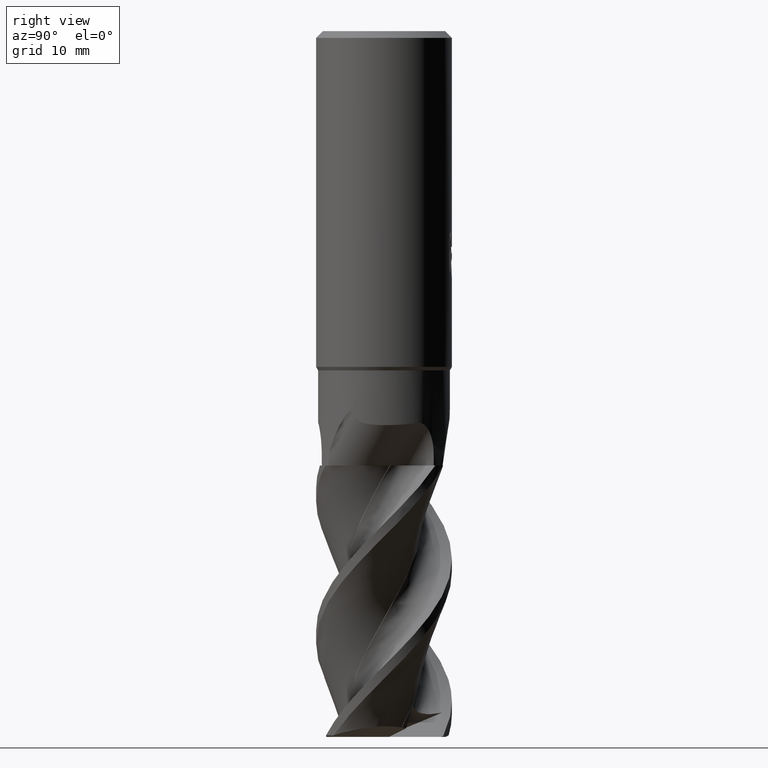
[diagram: clean part render]
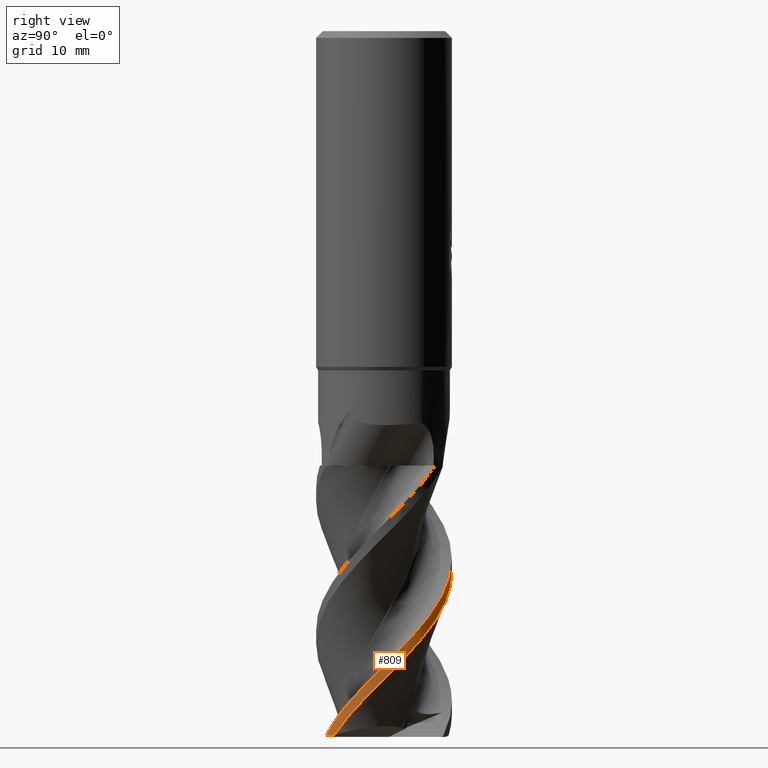
[diagram: same view with one face highlighted and labeled with its STEP entity id]
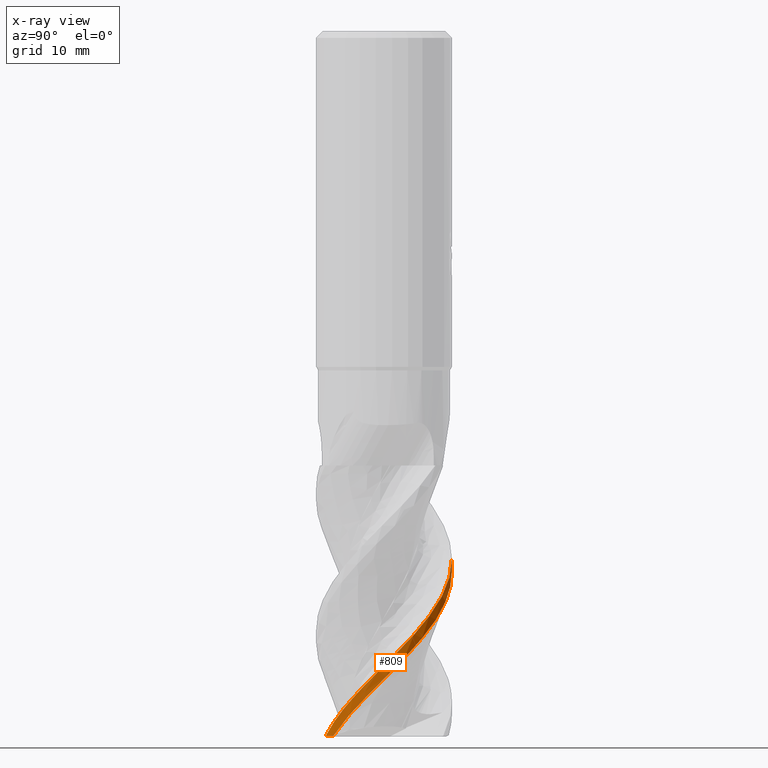
[diagram: x-ray of the same camera — body ghosted, the highlighted face saturated]
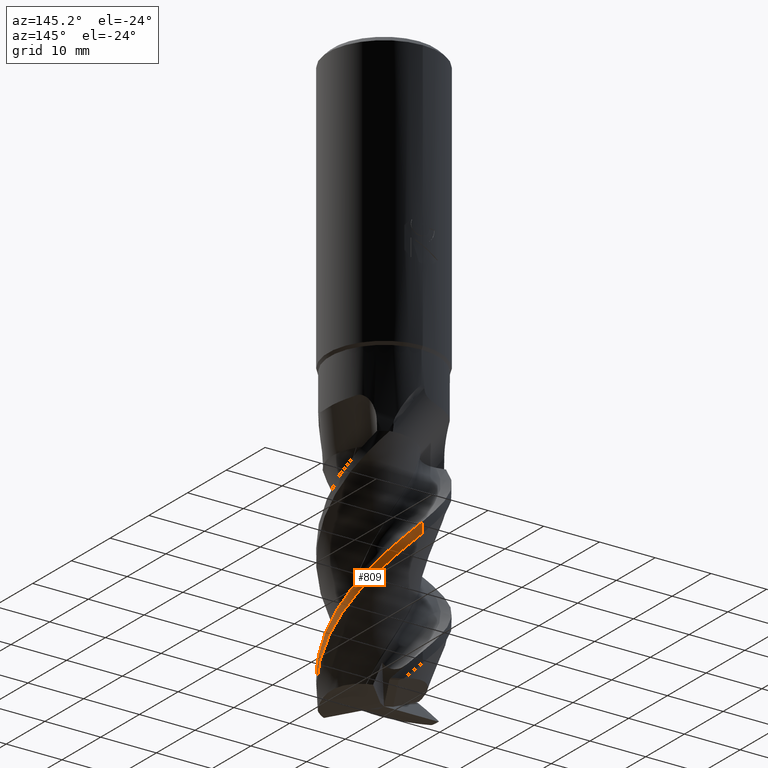
[diagram: same view with one face highlighted and labeled with its STEP entity id]
A machine part, right view. The second image highlights one B-rep face of the part: STEP entity #809.
The next image is the same camera in x-ray: the body ghosted, the highlighted face saturated — about 0% of this face is hidden behind the body in this view.
A second angle (auxiliary view) of the same face is appended — the face is thin or edge-on in the first view.
In plain terms, the highlighted conical surface has half-angle 0 deg.
Its self-contained STEP definition (entity closure, byte-faithful):
#453=VERTEX_POINT('',#1308);
#497=EDGE_CURVE('',#967,#1281,#1357,.T.);
#535=EDGE_CURVE('',#563,#453,#1399,.T.);
#563=VERTEX_POINT('',#1429);
#595=EDGE_CURVE('',#697,#563,#1464,.T.);
#697=VERTEX_POINT('',#1576);
#809=ADVANCED_FACE('',(#1700),#1701,.T.);
#967=VERTEX_POINT('',#1873);
#1003=EDGE_CURVE('',#697,#1281,#1910,.T.);
#1065=EDGE_CURVE('',#967,#453,#1978,.T.);
#1281=VERTEX_POINT('',#2214);
#1308=CARTESIAN_POINT('',(-1.44784733791504E-012,9.99993947624046,-79.7115437015263));
#1357=B_SPLINE_CURVE_WITH_KNOTS('',3,(#2415,#2416,#2417,#2418,#2419,#2420,#2421,#2422,#2423,#2424,#2425,#2426,#2427,#2428,#2429,#2430,#2431,#2432,#2433,#2434,#2435,#2436,#2437,#2438,#2439,#2440,#2441,#2442,#2443,#2444,#2445,#2446,#2447,#2448,#2449,#2450,#2451,#2452,#2453,#2454,#2455,#2456,#2457,#2458,#2459,#2460,#2461,#2462,#2463,#2464),.UNSPECIFIED.,.F.,.F.,(4,2,2,2,2,2,2,2,2,2,2,2,2,2,2,2,2,2,2,2,2,2,2,2,4),(0.0,1.83688179088632,5.68461323344617,6.58714347548121,8.38778271226653,10.2578606888634,12.9205590427445,14.8115356261273,18.507071820997,20.4283711112207,22.1734569225614,24.0094227868724,26.6497551941611,28.5041572687774,32.1316176911137,34.0160028990023,35.713504521051,37.512762740781,39.9990802534086,40.9011966697282,43.2801547555303,44.7519676223213,45.309646177908,46.6616631189539,47.8933672128346),.UNSPECIFIED.);
#1399=B_SPLINE_CURVE_WITH_KNOTS('',3,(#3065,#3066,#3067,#3068,#3069,#3070,#3071,#3072,#3073,#3074,#3075,#3076,#3077,#3078,#3079,#3080,#3081,#3082,#3083,#3084,#3085,#3086,#3087,#3088,#3089,#3090,#3091,#3092,#3093,#3094,#3095,#3096,#3097,#3098,#3099,#3100,#3101,#3102,#3103,#3104,#3105,#3106,#3107,#3108,#3109,#3110,#3111,#3112,#3113,#3114),.UNSPECIFIED.,.F.,.F.,(4,2,2,2,2,2,2,2,2,2,2,2,2,2,2,2,2,2,2,2,2,2,2,2,4),(0.0,6.65242903024763,7.56982083744152,9.39002536430975,13.1654422231845,14.8642968365969,18.4570516658264,19.775683816953,21.4348193968141,23.0557497425016,26.2948814002811,27.9268426898688,29.5151957014848,32.6893999396295,34.2886948796586,35.8451217292304,38.9553312426421,40.5223597795722,43.2828128134381,44.4623509281644,46.282936741235,48.9671843551809,50.3099974556583,50.9855578351501,51.6831145815169),.UNSPECIFIED.);
#1429=CARTESIAN_POINT('',(6.74215560576316,-7.38534596503248,-103.744987352058));
#1464=ELLIPSE('',#3335,10.5146239393431,10.0000016139019);
#1576=CARTESIAN_POINT('',(6.61336361160003,-7.50089472934826,-103.8));
#1700=FACE_OUTER_BOUND('',#5704,.T.);
#1701=CONICAL_SURFACE('',#5705,9.99995,2.51256281405921E-006);
#1873=CARTESIAN_POINT('',(2.41256380381924E-013,9.99993471722382,-77.8174550813689));
#1910=CIRCLE('',#7759,10.0);
#1978=LINE('',#7925,#7926);
#2214=CARTESIAN_POINT('',(5.16433493080699,-8.56327301459242,-103.8));
#2415=CARTESIAN_POINT('',(-9.8195921515313,1.89039942540851,-64.0));
#2416=CARTESIAN_POINT('',(-9.73680179583058,2.32045577612645,-64.4279032008373));
#2417=CARTESIAN_POINT('',(-9.62616861492684,2.74299842483845,-64.8612519519152));
#2418=CARTESIAN_POINT('',(-9.20147259722876,4.02005363807295,-66.2119453588237));
#2419=CARTESIAN_POINT('',(-8.79681885369268,4.84242542738371,-67.1408594066878));
#2420=CARTESIAN_POINT('',(-8.16514397107321,5.77707335028328,-68.2666298142365));
#2421=CARTESIAN_POINT('',(-8.03905614943915,5.95133236644778,-68.4799434901195));
#2422=CARTESIAN_POINT('',(-7.6434263994983,6.46232165426562,-69.1162582574725));
#2423=CARTESIAN_POINT('',(-7.35946761866097,6.78430140816072,-69.5345292134535));
#2424=CARTESIAN_POINT('',(-6.72891096634235,7.41115819908335,-70.4222580444062));
#2425=CARTESIAN_POINT('',(-6.38746227012636,7.70720699300879,-70.8778866002762));
#2426=CARTESIAN_POINT('',(-5.51751157652145,8.36455225197479,-71.9813376341191));
#2427=CARTESIAN_POINT('',(-4.96811168381596,8.70254915214437,-72.6321638236527));
#2428=CARTESIAN_POINT('',(-3.97444745947986,9.18766042162107,-73.7311607623126));
#2429=CARTESIAN_POINT('',(-3.55336347728873,9.3585454748018,-74.1709372673356));
#2430=CARTESIAN_POINT('',(-2.26623385999863,9.78088875441132,-75.514618129322));
#2431=CARTESIAN_POINT('',(-1.38483293467721,9.94334112034112,-76.4215144979877));
#2432=CARTESIAN_POINT('',(-0.0363006088850028,10.0105285744786,-77.7826774828773));
#2433=CARTESIAN_POINT('',(0.428775960197617,10.0016701883967,-78.247236054852));
#2434=CARTESIAN_POINT('',(1.3172894859256,9.9218848606799,-79.1252920679502));
#2435=CARTESIAN_POINT('',(1.7360398637281,9.85749995050665,-79.5382619480409));
#2436=CARTESIAN_POINT('',(2.59874100573697,9.66698184683463,-80.4203157849213));
#2437=CARTESIAN_POINT('',(3.03234541832829,9.53971035256465,-80.8759048502464));
#2438=CARTESIAN_POINT('',(4.0615590237687,9.16084746319968,-81.9857675872801));
#2439=CARTESIAN_POINT('',(4.64847958002076,8.87790319686943,-82.6431174089107));
#2440=CARTESIAN_POINT('',(5.59777984951222,8.29905298076998,-83.7477824578689));
#2441=CARTESIAN_POINT('',(5.96848125758253,8.03655919389752,-84.1873210526903));
#2442=CARTESIAN_POINT('',(7.01801302311412,7.17985215591402,-85.531584927985));
#2443=CARTESIAN_POINT('',(7.6301750734402,6.5245551675841,-86.4390864183552));
#2444=CARTESIAN_POINT('',(8.41368232905812,5.42424226569849,-87.8005745330614));
#2445=CARTESIAN_POINT('',(8.65678997469815,5.02769801326058,-88.2649574624631));
#2446=CARTESIAN_POINT('',(9.06669987096167,4.23928760390179,-89.1392161205382));
#2447=CARTESIAN_POINT('',(9.23701700052727,3.85479958518363,-89.5493891767617));
#2448=CARTESIAN_POINT('',(9.5410969636832,3.02853654652327,-90.4285406652441));
#2449=CARTESIAN_POINT('',(9.66794885189552,2.59471603395918,-90.8842700001985));
#2450=CARTESIAN_POINT('',(9.89893487455372,1.54824090147482,-91.9688175478429));
#2451=CARTESIAN_POINT('',(9.9766331728941,0.927206279076268,-92.6004351387727));
#2452=CARTESIAN_POINT('',(10.0022994472353,0.0727103344601177,-93.450955853776));
#2453=CARTESIAN_POINT('',(10.0013906285882,-0.155806862244051,-93.6766676732029));
#2454=CARTESIAN_POINT('',(9.96927950575422,-0.989334851649771,-94.4938435346194));
#2455=CARTESIAN_POINT('',(9.88345283613999,-1.81925026488744,-95.3172827968889));
#2456=CARTESIAN_POINT('',(9.4356740911284,-3.3686339840874,-96.9491844614293));
#2457=CARTESIAN_POINT('',(9.20938442838165,-3.94633219056517,-97.5752784988786));
#2458=CARTESIAN_POINT('',(8.8234325710378,-4.71192885272547,-98.4285172984764));
#2459=CARTESIAN_POINT('',(8.7095674962793,-4.91930502920194,-98.6622106111756));
#2460=CARTESIAN_POINT('',(8.29297727467946,-5.61762601590349,-99.4586691797531));
#2461=CARTESIAN_POINT('',(7.84686830302832,-6.27042652931896,-100.238006715456));
#2462=CARTESIAN_POINT('',(6.59274472440632,-7.56807428979895,-102.064097949723));
#2463=CARTESIAN_POINT('',(5.91269706929701,-8.11194858551921,-102.941449862242));
#2464=CARTESIAN_POINT('',(5.16433493080699,-8.56327301459242,-103.8));
#3065=CARTESIAN_POINT('',(6.70069878454363,-7.42298025046648,-103.8));
#3066=CARTESIAN_POINT('',(7.87523291662968,-6.36272706377205,-102.246444694812));
#3067=CARTESIAN_POINT('',(8.78122939826264,-5.04005581548762,-100.616631906771));
#3068=CARTESIAN_POINT('',(9.42309333576583,-3.35452542420069,-98.8528470911915));
#3069=CARTESIAN_POINT('',(9.49503231105218,-3.14567206700517,-98.6365226572576));
#3070=CARTESIAN_POINT('',(9.69273872719166,-2.5003774802769,-97.9681462705121));
#3071=CARTESIAN_POINT('',(9.79449059088749,-2.06518058369112,-97.5199298807626));
#3072=CARTESIAN_POINT('',(10.0166558618159,-0.71776142373854,-96.1404005826739));
#3073=CARTESIAN_POINT('',(10.0412635772841,0.214397438797438,-95.198551826366));
#3074=CARTESIAN_POINT('',(9.88640015333802,1.56058754689594,-93.8655324811264));
#3075=CARTESIAN_POINT('',(9.81252710581884,1.97388770687788,-93.4563811813412));
#3076=CARTESIAN_POINT('',(9.4947290722002,3.2658053952675,-92.1282797482288));
#3077=CARTESIAN_POINT('',(9.16147641647547,4.10820599737784,-91.2094885034884));
#3078=CARTESIAN_POINT('',(8.559188232589,5.18158289602682,-89.9737576016456));
#3079=CARTESIAN_POINT('',(8.38251683771596,5.46297263147413,-89.6429721193486));
#3080=CARTESIAN_POINT('',(7.95021396939508,6.08026826251375,-88.9010563501039));
#3081=CARTESIAN_POINT('',(7.68932378961563,6.40739330717991,-88.4939724048626));
#3082=CARTESIAN_POINT('',(7.12365351020546,7.03033859386279,-87.6547094084142));
#3083=CARTESIAN_POINT('',(6.82622228350467,7.31930686483281,-87.2370745854592));
#3084=CARTESIAN_POINT('',(5.88704796096753,8.12540508720116,-85.9848092828037));
#3085=CARTESIAN_POINT('',(5.1924169279643,8.5870883671453,-85.1435105594343));
#3086=CARTESIAN_POINT('',(4.06503929654036,9.14615766311109,-83.9043643458397));
#3087=CARTESIAN_POINT('',(3.67779866338934,9.30888198391779,-83.4957066711691));
#3088=CARTESIAN_POINT('',(2.88126238281649,9.58489166619146,-82.6548199951253));
#3089=CARTESIAN_POINT('',(2.48173089553118,9.69589130204028,-82.237184012907));
#3090=CARTESIAN_POINT('',(1.27108329513275,9.95307226358015,-80.9848963115355));
#3091=CARTESIAN_POINT('',(0.440107723090092,10.0252408914873,-80.1435994403185));
#3092=CARTESIAN_POINT('',(-0.817412511275718,9.9753882567732,-78.9044860540787));
#3093=CARTESIAN_POINT('',(-1.23530223877635,9.93253875688308,-78.4958550015093));
#3094=CARTESIAN_POINT('',(-2.06676097456496,9.79285956477666,-77.6549464116611));
#3095=CARTESIAN_POINT('',(-2.47062442938916,9.69871517567038,-77.2373116026611));
#3096=CARTESIAN_POINT('',(-3.65636937240386,9.34398156987025,-75.9850493355579));
#3097=CARTESIAN_POINT('',(-4.42016844619223,9.00893253577936,-75.1437492946965));
#3098=CARTESIAN_POINT('',(-5.49973107171853,8.36236803552893,-73.9045930056067));
#3099=CARTESIAN_POINT('',(-5.84588420031066,8.12444555383164,-73.4959391178302));
#3100=CARTESIAN_POINT('',(-6.77321625649006,7.3951532289451,-72.3191357709793));
#3101=CARTESIAN_POINT('',(-7.3084292274384,6.8661666465248,-71.5571990319618));
#3102=CARTESIAN_POINT('',(-7.97908841823686,6.03610293625383,-70.4797606622806));
#3103=CARTESIAN_POINT('',(-8.16852772302857,5.77727778068163,-70.1576119929425));
#3104=CARTESIAN_POINT('',(-8.6192443961027,5.09444819231339,-69.3426668234155));
#3105=CARTESIAN_POINT('',(-8.85834982171171,4.66614930607128,-68.8686222307968));
#3106=CARTESIAN_POINT('',(-9.37493716570216,3.55548390434748,-67.6544134211693));
#3107=CARTESIAN_POINT('',(-9.60768486310159,2.86561181045573,-66.9194656923198));
#3108=CARTESIAN_POINT('',(-9.84171092217013,1.80810669656245,-65.8234310821178));
#3109=CARTESIAN_POINT('',(-9.90080767510292,1.45051703467983,-65.4579322364689));
#3110=CARTESIAN_POINT('',(-9.96028482450916,0.907833202887552,-64.9115894358543));
#3111=CARTESIAN_POINT('',(-9.97526294143053,0.725200364049062,-64.7291120232753));
#3112=CARTESIAN_POINT('',(-9.9954916861099,0.352345378317829,-64.3594297163902));
#3113=CARTESIAN_POINT('',(-10.0001517105948,0.166830188109848,-64.1769858654546));
#3114=CARTESIAN_POINT('',(-9.99988957941518,-0.0144363951061299,-64.0));
#3335=AXIS2_PLACEMENT_3D('',#10256,#10257,#10258);
#5704=EDGE_LOOP('',(#10537,#10538,#10539,#10540,#10541));
#5705=AXIS2_PLACEMENT_3D('',#10542,#10543,#10544);
#7759=AXIS2_PLACEMENT_3D('',#10724,#10725,#10726);
#7925=CARTESIAN_POINT('',(-1.23222961858351E-015,9.99995,-83.9));
#7926=VECTOR('',#10812,1.0);
#10256=CARTESIAN_POINT('',(-7.07006926070619E-006,-4.08190638978567E-006,-104.442334297003));
#10257=DIRECTION('',(-0.267616567329814,-0.154508497187472,0.951056516295155));
#10258=DIRECTION('',(-0.823639103546334,-0.475528258147576,-0.309016994374943));
#10537=ORIENTED_EDGE('',*,*,#1065,.F.);
#10538=ORIENTED_EDGE('',*,*,#497,.T.);
#10539=ORIENTED_EDGE('',*,*,#1003,.F.);
#10540=ORIENTED_EDGE('',*,*,#595,.T.);
#10541=ORIENTED_EDGE('',*,*,#535,.T.);
#10542=CARTESIAN_POINT('',(0.0,0.0,-83.9));
#10543=DIRECTION('',(0.0,-0.0,-1.0));
#10544=DIRECTION('',(0.0,1.0,0.0));
#10724=CARTESIAN_POINT('',(0.0,0.0,-103.8));
#10725=DIRECTION('',(0.0,0.0,-1.0));
#10726=DIRECTION('',(0.0,1.0,0.0));
#10812=DIRECTION('',(-3.0769003864715E-022,2.51256281405657E-006,-0.999999999996844));